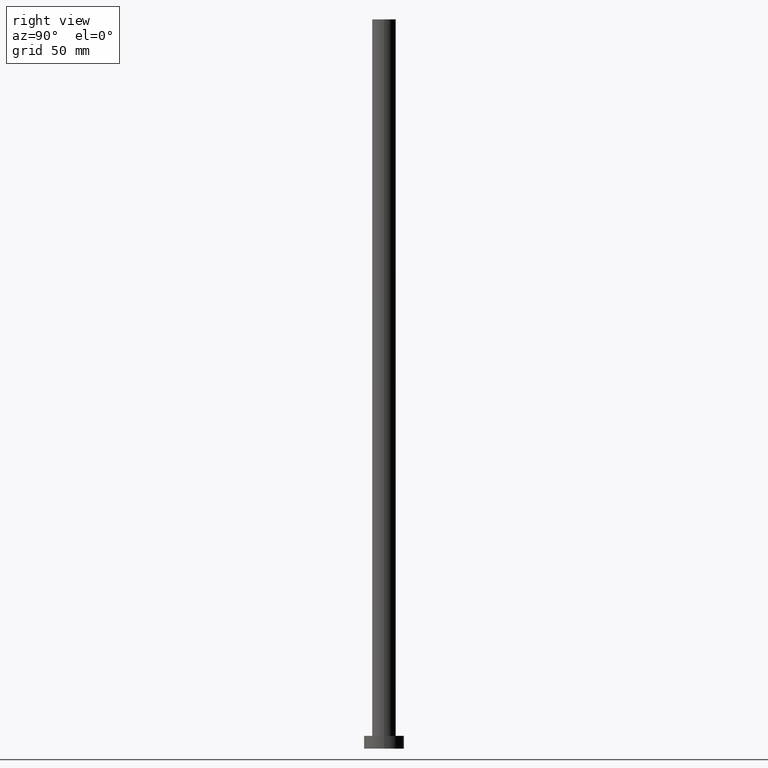
[diagram: clean part render]
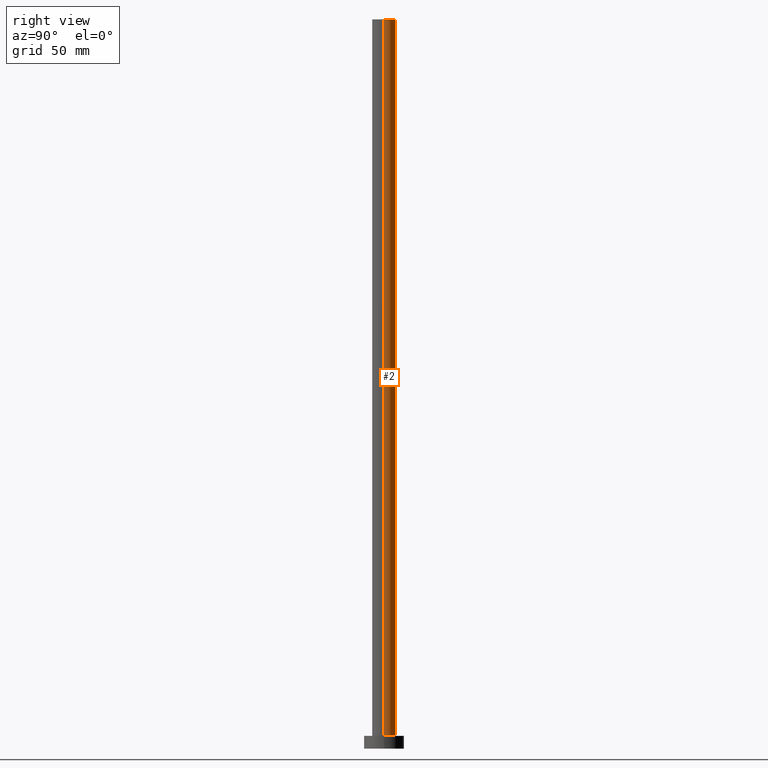
[diagram: same view with one face highlighted and labeled with its STEP entity id]
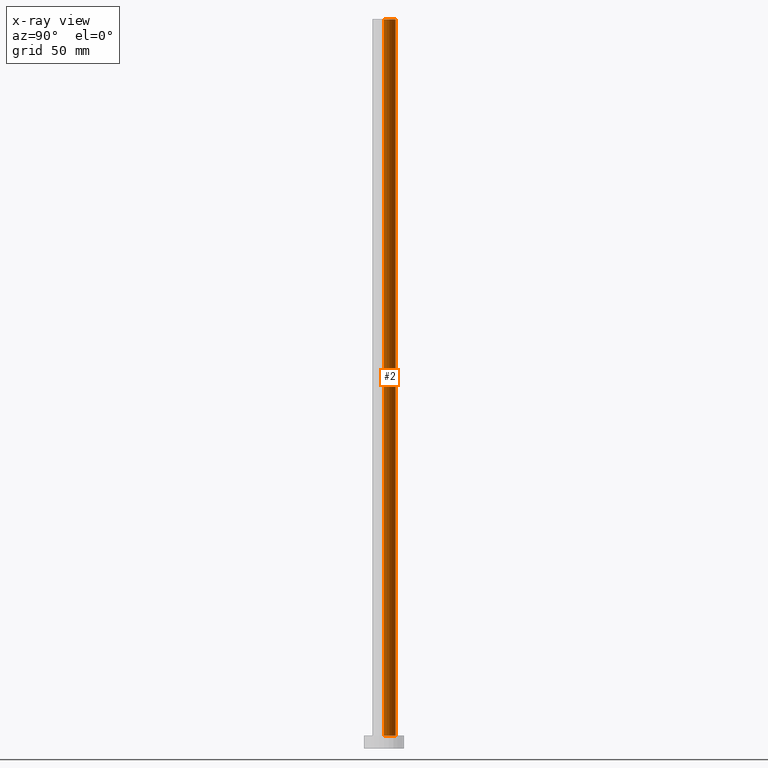
[diagram: x-ray of the same camera — body ghosted, the highlighted face saturated]
A machine part, right view. The second image highlights one B-rep face of the part: STEP entity #2.
The next image is the same camera in x-ray: the body ghosted, the highlighted face saturated — about 0% of this face is hidden behind the body in this view.
In plain terms, the highlighted cylindrical surface (edge-blend (fillet) strip) has radius 6.5 mm, axis along (-0, -0, -1).
Its self-contained STEP definition (entity closure, byte-faithful):
#2 = ADVANCED_FACE ( 'NONE', ( #76 ), #97, .T. ) ;
#6 = AXIS2_PLACEMENT_3D ( 'NONE', #114, #173, #208 ) ;
#17 = LINE ( 'NONE', #227, #35 ) ;
#21 = CARTESIAN_POINT ( 'NONE',  ( 6.500000000000000888, 7.960204194457796463E-16, 400.0000000000000000 ) ) ;
#23 = CARTESIAN_POINT ( 'NONE',  ( -6.500000000000000888, 0.000000000000000000, 400.0000000000000000 ) ) ;
#35 = VECTOR ( 'NONE', #205, 1000.000000000000000 ) ;
#47 = VERTEX_POINT ( 'NONE', #23 ) ;
#48 = VERTEX_POINT ( 'NONE', #193 ) ;
#55 = DIRECTION ( 'NONE',  ( -0.000000000000000000, -0.000000000000000000, -1.000000000000000000 ) ) ;
#68 = ORIENTED_EDGE ( 'NONE', *, *, #80, .F. ) ;
#73 = DIRECTION ( 'NONE',  ( 1.000000000000000000, 0.000000000000000000, 0.000000000000000000 ) ) ;
#76 = FACE_OUTER_BOUND ( 'NONE', #123, .T. ) ;
#80 = EDGE_CURVE ( 'NONE', #47, #96, #17, .T. ) ;
#92 = LINE ( 'NONE', #172, #190 ) ;
#96 = VERTEX_POINT ( 'NONE', #129 ) ;
#97 = CYLINDRICAL_SURFACE ( 'NONE', #206, 6.500000000000000888 ) ;
#114 = CARTESIAN_POINT ( 'NONE',  ( 0.000000000000000000, 0.000000000000000000, 7.000000000000000000 ) ) ;
#118 = CIRCLE ( 'NONE', #6, 6.500000000000000888 ) ;
#123 = EDGE_LOOP ( 'NONE', ( #142, #207, #245, #68 ) ) ;
#129 = CARTESIAN_POINT ( 'NONE',  ( -6.500000000000000888, 0.000000000000000000, 7.000000000000000000 ) ) ;
#132 = CIRCLE ( 'NONE', #148, 6.500000000000000888 ) ;
#141 = EDGE_CURVE ( 'NONE', #48, #96, #118, .T. ) ;
#142 = ORIENTED_EDGE ( 'NONE', *, *, #176, .F. ) ;
#148 = AXIS2_PLACEMENT_3D ( 'NONE', #191, #250, #73 ) ;
#153 = CARTESIAN_POINT ( 'NONE',  ( 0.000000000000000000, 0.000000000000000000, 400.0000000000000000 ) ) ;
#165 = EDGE_CURVE ( 'NONE', #241, #48, #92, .T. ) ;
#172 = CARTESIAN_POINT ( 'NONE',  ( 6.500000000000000888, 7.960204194457796463E-16, 400.0000000000000000 ) ) ;
#173 = DIRECTION ( 'NONE',  ( 0.000000000000000000, 0.000000000000000000, 1.000000000000000000 ) ) ;
#176 = EDGE_CURVE ( 'NONE', #241, #47, #132, .T. ) ;
#190 = VECTOR ( 'NONE', #55, 1000.000000000000000 ) ;
#191 = CARTESIAN_POINT ( 'NONE',  ( 0.000000000000000000, 0.000000000000000000, 400.0000000000000000 ) ) ;
#193 = CARTESIAN_POINT ( 'NONE',  ( 6.500000000000000888, 7.960204194457796463E-16, 7.000000000000000000 ) ) ;
#205 = DIRECTION ( 'NONE',  ( -0.000000000000000000, -0.000000000000000000, -1.000000000000000000 ) ) ;
#206 = AXIS2_PLACEMENT_3D ( 'NONE', #153, #231, #220 ) ;
#207 = ORIENTED_EDGE ( 'NONE', *, *, #165, .T. ) ;
#208 = DIRECTION ( 'NONE',  ( 1.000000000000000000, 0.000000000000000000, 0.000000000000000000 ) ) ;
#220 = DIRECTION ( 'NONE',  ( -1.000000000000000000, 0.000000000000000000, 0.000000000000000000 ) ) ;
#227 = CARTESIAN_POINT ( 'NONE',  ( -6.500000000000000888, 0.000000000000000000, 400.0000000000000000 ) ) ;
#231 = DIRECTION ( 'NONE',  ( -0.000000000000000000, -0.000000000000000000, -1.000000000000000000 ) ) ;
#241 = VERTEX_POINT ( 'NONE', #21 ) ;
#245 = ORIENTED_EDGE ( 'NONE', *, *, #141, .T. ) ;
#250 = DIRECTION ( 'NONE',  ( 0.000000000000000000, 0.000000000000000000, 1.000000000000000000 ) ) ;